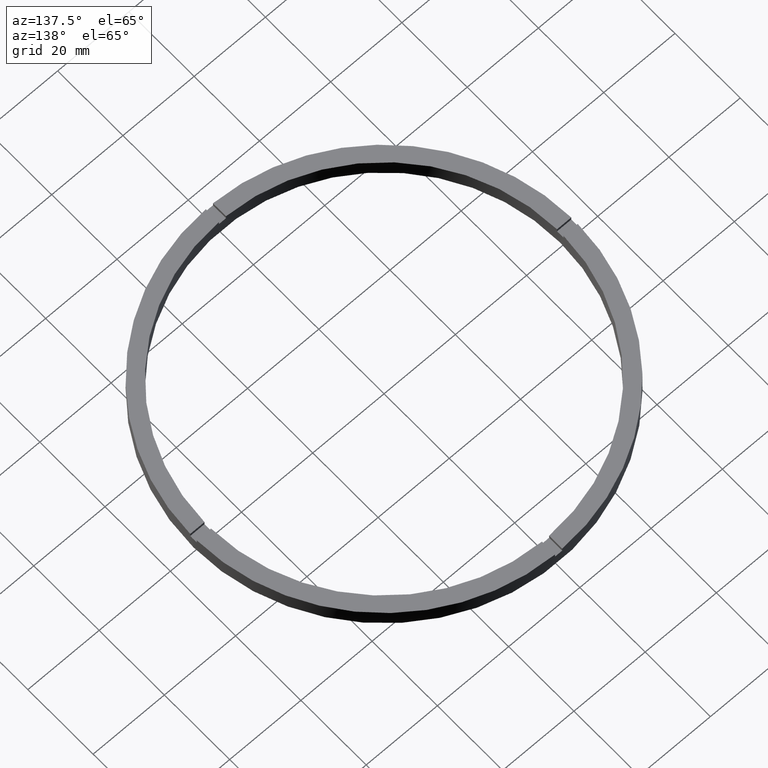
[diagram: clean part render]
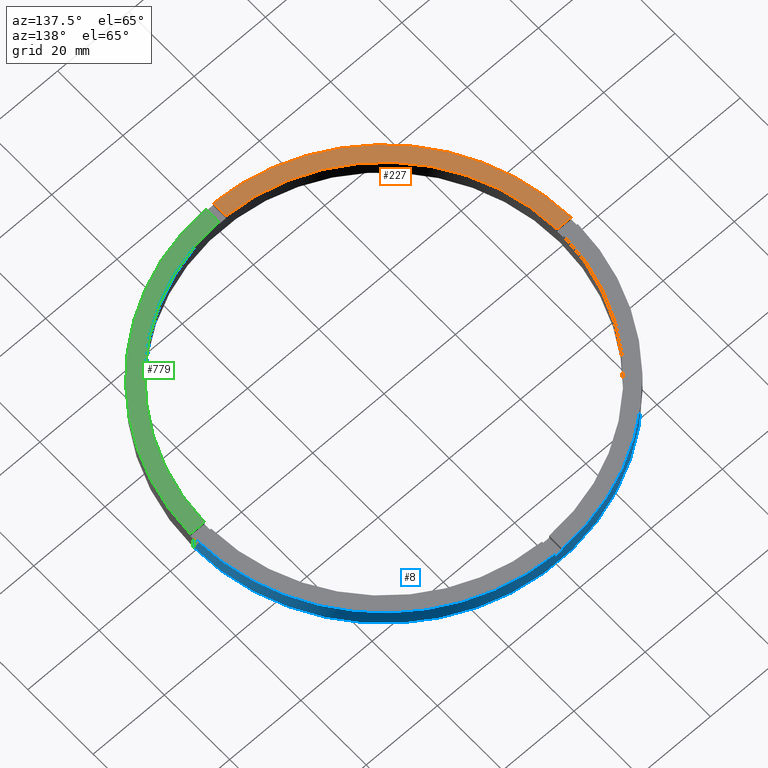
[diagram: same view with three faces highlighted in distinct colors, each labeled with its STEP entity id]
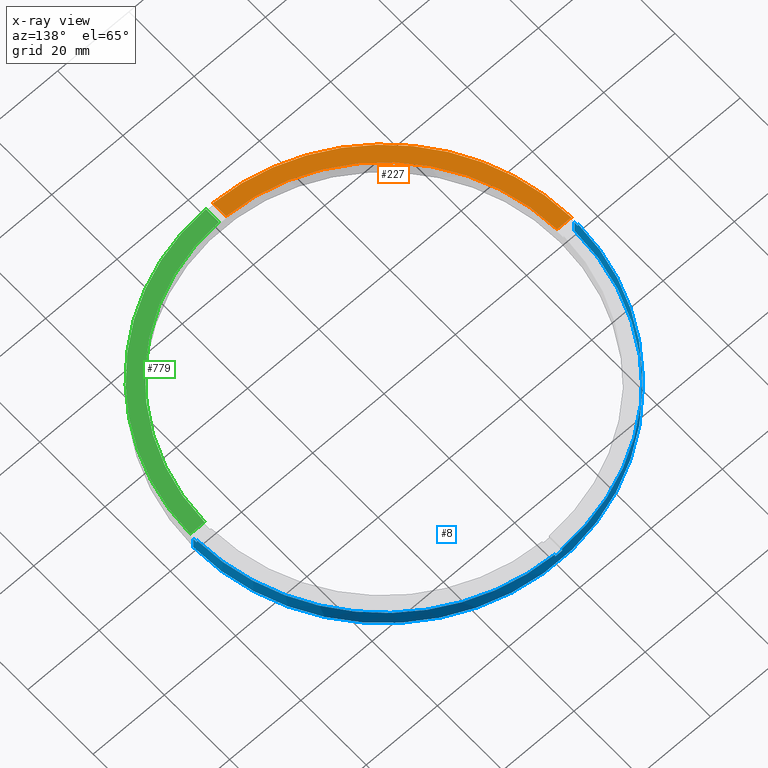
[diagram: x-ray of the same camera — body ghosted, the three highlighted faces saturated]
A machine part, auxiliary view with three faces highlighted in distinct colors.
The next image is the same camera in x-ray (body ghosted, the three faces saturated) — at least one of them is partly hidden behind the body in this view.
Their STEP definitions:

[orange] entity #227 — the highlighted planar face has unit normal (0, 0, 1).
#16 = EDGE_CURVE ( 'NONE', #222, #717, #733, .T. ) ;
#17 = CARTESIAN_POINT ( 'NONE',  ( -1.000000000000157208, -43.50000000000017764, 5.000000000000000000 ) ) ;
#22 = CARTESIAN_POINT ( 'NONE',  ( -53.49065338916696533, -1.000000000000032641, 5.000000000000000000 ) ) ;
#28 = EDGE_CURVE ( 'NONE', #717, #433, #742, .T. ) ;
#49 = LINE ( 'NONE', #17, #302 ) ;
#55 = FACE_OUTER_BOUND ( 'NONE', #725, .T. ) ;
#77 = EDGE_CURVE ( 'NONE', #433, #215, #49, .T. ) ;
#118 = AXIS2_PLACEMENT_3D ( 'NONE', #519, #265, #374 ) ;
#154 = ORIENTED_EDGE ( 'NONE', *, *, #16, .F. ) ;
#215 = VERTEX_POINT ( 'NONE', #555 ) ;
#219 = DIRECTION ( 'NONE',  ( 0.000000000000000000, 0.000000000000000000, 1.000000000000000000 ) ) ;
#222 = VERTEX_POINT ( 'NONE', #22 ) ;
#227 = ADVANCED_FACE ( 'NONE', ( #55 ), #372, .T. ) ;
#242 = EDGE_CURVE ( 'NONE', #222, #215, #310, .T. ) ;
#264 = DIRECTION ( 'NONE',  ( 1.301042606982605074E-16, -1.000000000000000000, 0.000000000000000000 ) ) ;
#265 = DIRECTION ( 'NONE',  ( 0.000000000000000000, 0.000000000000000000, 1.000000000000000000 ) ) ;
#302 = VECTOR ( 'NONE', #264, 1000.000000000000000 ) ;
#310 = CIRCLE ( 'NONE', #403, 53.50000000000000000 ) ;
#347 = DIRECTION ( 'NONE',  ( 1.000000000000000000, 0.000000000000000000, -0.000000000000000000 ) ) ;
#372 = PLANE ( 'NONE',  #395 ) ;
#374 = DIRECTION ( 'NONE',  ( 1.000000000000000000, 0.000000000000000000, 0.000000000000000000 ) ) ;
#395 = AXIS2_PLACEMENT_3D ( 'NONE', #470, #219, #347 ) ;
#403 = AXIS2_PLACEMENT_3D ( 'NONE', #512, #599, #580 ) ;
#433 = VERTEX_POINT ( 'NONE', #495 ) ;
#470 = CARTESIAN_POINT ( 'NONE',  ( 0.000000000000000000, 0.000000000000000000, 5.000000000000000000 ) ) ;
#476 = VECTOR ( 'NONE', #668, 1000.000000000000000 ) ;
#495 = CARTESIAN_POINT ( 'NONE',  ( -1.000000000000156319, -49.48989795907849043, 5.000000000000000000 ) ) ;
#512 = CARTESIAN_POINT ( 'NONE',  ( 0.000000000000000000, 0.000000000000000000, 5.000000000000000000 ) ) ;
#519 = CARTESIAN_POINT ( 'NONE',  ( 0.000000000000000000, 0.000000000000000000, 5.000000000000000000 ) ) ;
#555 = CARTESIAN_POINT ( 'NONE',  ( -1.000000000000155875, -53.49065338916696533, 5.000000000000000000 ) ) ;
#580 = DIRECTION ( 'NONE',  ( 1.000000000000000000, 0.000000000000000000, 0.000000000000000000 ) ) ;
#599 = DIRECTION ( 'NONE',  ( 0.000000000000000000, 0.000000000000000000, 1.000000000000000000 ) ) ;
#602 = CARTESIAN_POINT ( 'NONE',  ( -43.50000000000018474, -1.000000000000030642, 5.000000000000000000 ) ) ;
#668 = DIRECTION ( 'NONE',  ( 1.000000000000000000, 1.951563910473907735E-16, -0.000000000000000000 ) ) ;
#677 = ORIENTED_EDGE ( 'NONE', *, *, #242, .T. ) ;
#681 = ORIENTED_EDGE ( 'NONE', *, *, #28, .F. ) ;
#717 = VERTEX_POINT ( 'NONE', #727 ) ;
#725 = EDGE_LOOP ( 'NONE', ( #749, #681, #154, #677 ) ) ;
#727 = CARTESIAN_POINT ( 'NONE',  ( -49.48989795907849043, -1.000000000000031974, 5.000000000000000000 ) ) ;
#733 = LINE ( 'NONE', #602, #476 ) ;
#742 = CIRCLE ( 'NONE', #118, 49.50000000000000711 ) ;
#749 = ORIENTED_EDGE ( 'NONE', *, *, #77, .F. ) ;

[blue] entity #8 — the highlighted cylindrical surface (partial cylindrical patch) has radius 53.5 mm, axis along (-0, -0, -1).
#5 = CARTESIAN_POINT ( 'NONE',  ( 0.000000000000000000, 0.000000000000000000, 4.000000000000000000 ) ) ;
#8 = ADVANCED_FACE ( 'NONE', ( #739 ), #473, .T. ) ;
#10 = DIRECTION ( 'NONE',  ( 1.000000000000000000, 0.000000000000000000, 0.000000000000000000 ) ) ;
#24 = DIRECTION ( 'NONE',  ( -1.000000000000000000, 0.000000000000000000, 0.000000000000000000 ) ) ;
#27 = DIRECTION ( 'NONE',  ( 0.000000000000000000, 0.000000000000000000, 1.000000000000000000 ) ) ;
#31 = CIRCLE ( 'NONE', #758, 53.50000000000000000 ) ;
#34 = VECTOR ( 'NONE', #514, 1000.000000000000000 ) ;
#43 = CARTESIAN_POINT ( 'NONE',  ( 0.9999999999999726885, 53.49065338916696533, 5.000000000000000000 ) ) ;
#46 = LINE ( 'NONE', #116, #34 ) ;
#47 = EDGE_CURVE ( 'NONE', #689, #229, #46, .T. ) ;
#58 = EDGE_CURVE ( 'NONE', #689, #492, #31, .T. ) ;
#71 = CARTESIAN_POINT ( 'NONE',  ( 0.000000000000000000, 0.000000000000000000, 5.000000000000000000 ) ) ;
#87 = CARTESIAN_POINT ( 'NONE',  ( 53.50000000000000000, 6.551860375438339893E-15, 0.000000000000000000 ) ) ;
#94 = CARTESIAN_POINT ( 'NONE',  ( 0.9999999999999726885, 53.49065338916696533, 5.000000000000000000 ) ) ;
#99 = ORIENTED_EDGE ( 'NONE', *, *, #353, .T. ) ;
#102 = EDGE_CURVE ( 'NONE', #699, #442, #296, .T. ) ;
#111 = LINE ( 'NONE', #252, #382 ) ;
#116 = CARTESIAN_POINT ( 'NONE',  ( 53.49065338916697243, 0.9999999999998454570, 5.000000000000000000 ) ) ;
#121 = CIRCLE ( 'NONE', #511, 53.50000000000000000 ) ;
#138 = VECTOR ( 'NONE', #429, 1000.000000000000000 ) ;
#145 = LINE ( 'NONE', #43, #138 ) ;
#168 = VERTEX_POINT ( 'NONE', #365 ) ;
#178 = VERTEX_POINT ( 'NONE', #698 ) ;
#203 = ORIENTED_EDGE ( 'NONE', *, *, #710, .F. ) ;
#206 = ORIENTED_EDGE ( 'NONE', *, *, #102, .F. ) ;
#209 = CARTESIAN_POINT ( 'NONE',  ( 53.49065338916697243, 0.9999999999998454570, 4.000000000000000000 ) ) ;
#217 = VERTEX_POINT ( 'NONE', #667 ) ;
#229 = VERTEX_POINT ( 'NONE', #209 ) ;
#239 = DIRECTION ( 'NONE',  ( 1.000000000000000000, 0.000000000000000000, 0.000000000000000000 ) ) ;
#252 = CARTESIAN_POINT ( 'NONE',  ( 53.50000000000000000, 6.551860375438339893E-15, 5.000000000000000000 ) ) ;
#253 = DIRECTION ( 'NONE',  ( 0.000000000000000000, 0.000000000000000000, 1.000000000000000000 ) ) ;
#254 = DIRECTION ( 'NONE',  ( -0.000000000000000000, -0.000000000000000000, -1.000000000000000000 ) ) ;
#256 = CARTESIAN_POINT ( 'NONE',  ( 0.000000000000000000, 0.000000000000000000, 5.000000000000000000 ) ) ;
#281 = CARTESIAN_POINT ( 'NONE',  ( 0.000000000000000000, 0.000000000000000000, 4.000000000000000000 ) ) ;
#283 = EDGE_CURVE ( 'NONE', #217, #229, #325, .T. ) ;
#291 = EDGE_CURVE ( 'NONE', #442, #178, #324, .T. ) ;
#296 = CIRCLE ( 'NONE', #478, 53.50000000000000000 ) ;
#307 = CARTESIAN_POINT ( 'NONE',  ( 0.000000000000000000, 0.000000000000000000, 4.000000000000000000 ) ) ;
#311 = CARTESIAN_POINT ( 'NONE',  ( 0.000000000000000000, 0.000000000000000000, 5.000000000000000000 ) ) ;
#324 = LINE ( 'NONE', #590, #588 ) ;
#325 = CIRCLE ( 'NONE', #604, 53.50000000000000000 ) ;
#337 = CARTESIAN_POINT ( 'NONE',  ( -53.49065338916696533, 0.9999999999999674705, 5.000000000000000000 ) ) ;
#353 = EDGE_CURVE ( 'NONE', #472, #638, #390, .T. ) ;
#362 = EDGE_CURVE ( 'NONE', #699, #168, #391, .T. ) ;
#365 = CARTESIAN_POINT ( 'NONE',  ( -53.49065338916696533, 0.9999999999999674705, 5.000000000000000000 ) ) ;
#382 = VECTOR ( 'NONE', #254, 1000.000000000000000 ) ;
#384 = ORIENTED_EDGE ( 'NONE', *, *, #528, .F. ) ;
#390 = LINE ( 'NONE', #543, #642 ) ;
#391 = LINE ( 'NONE', #337, #635 ) ;
#399 = CARTESIAN_POINT ( 'NONE',  ( 0.9999999999999726885, 53.49065338916696533, 4.000000000000000000 ) ) ;
#401 = CARTESIAN_POINT ( 'NONE',  ( 53.49065338916697243, 0.9999999999998454570, 5.000000000000000000 ) ) ;
#404 = DIRECTION ( 'NONE',  ( 1.000000000000000000, 0.000000000000000000, 0.000000000000000000 ) ) ;
#410 = EDGE_CURVE ( 'NONE', #487, #178, #650, .T. ) ;
#428 = ORIENTED_EDGE ( 'NONE', *, *, #515, .T. ) ;
#429 = DIRECTION ( 'NONE',  ( 0.000000000000000000, 0.000000000000000000, 1.000000000000000000 ) ) ;
#437 = ORIENTED_EDGE ( 'NONE', *, *, #58, .F. ) ;
#442 = VERTEX_POINT ( 'NONE', #778 ) ;
#464 = ORIENTED_EDGE ( 'NONE', *, *, #410, .T. ) ;
#466 = VERTEX_POINT ( 'NONE', #399 ) ;
#472 = VERTEX_POINT ( 'NONE', #734 ) ;
#473 = CYLINDRICAL_SURFACE ( 'NONE', #489, 53.50000000000000000 ) ;
#477 = ORIENTED_EDGE ( 'NONE', *, *, #659, .T. ) ;
#478 = AXIS2_PLACEMENT_3D ( 'NONE', #307, #27, #605 ) ;
#487 = VERTEX_POINT ( 'NONE', #87 ) ;
#489 = AXIS2_PLACEMENT_3D ( 'NONE', #71, #767, #24 ) ;
#490 = EDGE_LOOP ( 'NONE', ( #730, #428, #464, #630, #206, #726, #384, #99, #203, #477, #437, #693 ) ) ;
#492 = VERTEX_POINT ( 'NONE', #94 ) ;
#496 = DIRECTION ( 'NONE',  ( 0.000000000000000000, -0.000000000000000000, 1.000000000000000000 ) ) ;
#511 = AXIS2_PLACEMENT_3D ( 'NONE', #256, #542, #10 ) ;
#514 = DIRECTION ( 'NONE',  ( -0.000000000000000000, -0.000000000000000000, -1.000000000000000000 ) ) ;
#515 = EDGE_CURVE ( 'NONE', #217, #487, #111, .T. ) ;
#528 = EDGE_CURVE ( 'NONE', #472, #168, #121, .T. ) ;
#540 = DIRECTION ( 'NONE',  ( 0.000000000000000000, 0.000000000000000000, 1.000000000000000000 ) ) ;
#542 = DIRECTION ( 'NONE',  ( 0.000000000000000000, 0.000000000000000000, 1.000000000000000000 ) ) ;
#543 = CARTESIAN_POINT ( 'NONE',  ( -1.000000000000027311, 53.49065338916696533, 5.000000000000000000 ) ) ;
#544 = CARTESIAN_POINT ( 'NONE',  ( -53.49065338916696533, 0.9999999999999674705, 4.000000000000000000 ) ) ;
#547 = AXIS2_PLACEMENT_3D ( 'NONE', #631, #568, #239 ) ;
#550 = DIRECTION ( 'NONE',  ( 0.000000000000000000, 0.000000000000000000, 1.000000000000000000 ) ) ;
#568 = DIRECTION ( 'NONE',  ( 0.000000000000000000, 0.000000000000000000, 1.000000000000000000 ) ) ;
#586 = CARTESIAN_POINT ( 'NONE',  ( -1.000000000000027311, 53.49065338916696533, 4.000000000000000000 ) ) ;
#588 = VECTOR ( 'NONE', #748, 1000.000000000000000 ) ;
#589 = DIRECTION ( 'NONE',  ( -0.000000000000000000, -0.000000000000000000, -1.000000000000000000 ) ) ;
#590 = CARTESIAN_POINT ( 'NONE',  ( -53.50000000000000000, 0.000000000000000000, 5.000000000000000000 ) ) ;
#604 = AXIS2_PLACEMENT_3D ( 'NONE', #281, #540, #620 ) ;
#605 = DIRECTION ( 'NONE',  ( 1.000000000000000000, 0.000000000000000000, 0.000000000000000000 ) ) ;
#620 = DIRECTION ( 'NONE',  ( 1.000000000000000000, 0.000000000000000000, 0.000000000000000000 ) ) ;
#630 = ORIENTED_EDGE ( 'NONE', *, *, #291, .F. ) ;
#631 = CARTESIAN_POINT ( 'NONE',  ( 0.000000000000000000, 0.000000000000000000, 0.000000000000000000 ) ) ;
#635 = VECTOR ( 'NONE', #253, 1000.000000000000000 ) ;
#638 = VERTEX_POINT ( 'NONE', #586 ) ;
#642 = VECTOR ( 'NONE', #589, 1000.000000000000000 ) ;
#646 = AXIS2_PLACEMENT_3D ( 'NONE', #5, #496, #404 ) ;
#650 = CIRCLE ( 'NONE', #547, 53.50000000000000000 ) ;
#659 = EDGE_CURVE ( 'NONE', #466, #492, #145, .T. ) ;
#667 = CARTESIAN_POINT ( 'NONE',  ( 53.50000000000000000, 6.551860375438339893E-15, 4.000000000000000000 ) ) ;
#672 = CIRCLE ( 'NONE', #646, 53.50000000000000000 ) ;
#673 = DIRECTION ( 'NONE',  ( 1.000000000000000000, 0.000000000000000000, 0.000000000000000000 ) ) ;
#689 = VERTEX_POINT ( 'NONE', #401 ) ;
#693 = ORIENTED_EDGE ( 'NONE', *, *, #47, .T. ) ;
#698 = CARTESIAN_POINT ( 'NONE',  ( -53.50000000000000000, 0.000000000000000000, 0.000000000000000000 ) ) ;
#699 = VERTEX_POINT ( 'NONE', #544 ) ;
#710 = EDGE_CURVE ( 'NONE', #466, #638, #672, .T. ) ;
#726 = ORIENTED_EDGE ( 'NONE', *, *, #362, .T. ) ;
#730 = ORIENTED_EDGE ( 'NONE', *, *, #283, .F. ) ;
#734 = CARTESIAN_POINT ( 'NONE',  ( -1.000000000000027311, 53.49065338916696533, 5.000000000000000000 ) ) ;
#739 = FACE_OUTER_BOUND ( 'NONE', #490, .T. ) ;
#748 = DIRECTION ( 'NONE',  ( -0.000000000000000000, -0.000000000000000000, -1.000000000000000000 ) ) ;
#758 = AXIS2_PLACEMENT_3D ( 'NONE', #311, #550, #673 ) ;
#767 = DIRECTION ( 'NONE',  ( -0.000000000000000000, -0.000000000000000000, -1.000000000000000000 ) ) ;
#778 = CARTESIAN_POINT ( 'NONE',  ( -53.50000000000000000, 0.000000000000000000, 4.000000000000000000 ) ) ;

[green] entity #779 — the highlighted planar face has unit normal (0, 0, 1).
#19 = DIRECTION ( 'NONE',  ( 1.000000000000000000, 0.000000000000000000, -0.000000000000000000 ) ) ;
#25 = AXIS2_PLACEMENT_3D ( 'NONE', #409, #330, #277 ) ;
#48 = DIRECTION ( 'NONE',  ( 0.000000000000000000, 0.000000000000000000, 1.000000000000000000 ) ) ;
#50 = AXIS2_PLACEMENT_3D ( 'NONE', #746, #48, #282 ) ;
#75 = LINE ( 'NONE', #86, #76 ) ;
#76 = VECTOR ( 'NONE', #272, 1000.000000000000000 ) ;
#86 = CARTESIAN_POINT ( 'NONE',  ( 43.49999999999999289, -1.000000000000155209, 5.000000000000000000 ) ) ;
#106 = ORIENTED_EDGE ( 'NONE', *, *, #525, .F. ) ;
#109 = EDGE_LOOP ( 'NONE', ( #187, #106, #751, #150 ) ) ;
#134 = CARTESIAN_POINT ( 'NONE',  ( 49.48989795907849043, -1.000000000000154765, 5.000000000000000000 ) ) ;
#150 = ORIENTED_EDGE ( 'NONE', *, *, #364, .T. ) ;
#171 = DIRECTION ( 'NONE',  ( -1.301042606982605074E-16, 1.000000000000000000, -0.000000000000000000 ) ) ;
#187 = ORIENTED_EDGE ( 'NONE', *, *, #317, .F. ) ;
#234 = CARTESIAN_POINT ( 'NONE',  ( 0.9999999999998436806, -49.48989795907849043, 5.000000000000000000 ) ) ;
#250 = EDGE_CURVE ( 'NONE', #438, #735, #592, .T. ) ;
#272 = DIRECTION ( 'NONE',  ( 1.000000000000000000, 6.505213034913025371E-17, 0.000000000000000000 ) ) ;
#277 = DIRECTION ( 'NONE',  ( 1.000000000000000000, 0.000000000000000000, 0.000000000000000000 ) ) ;
#282 = DIRECTION ( 'NONE',  ( 1.000000000000000000, 0.000000000000000000, 0.000000000000000000 ) ) ;
#317 = EDGE_CURVE ( 'NONE', #474, #370, #75, .T. ) ;
#330 = DIRECTION ( 'NONE',  ( 0.000000000000000000, 0.000000000000000000, 1.000000000000000000 ) ) ;
#359 = PLANE ( 'NONE',  #506 ) ;
#364 = EDGE_CURVE ( 'NONE', #438, #370, #389, .T. ) ;
#370 = VERTEX_POINT ( 'NONE', #770 ) ;
#386 = CIRCLE ( 'NONE', #25, 49.50000000000000711 ) ;
#389 = CIRCLE ( 'NONE', #50, 53.50000000000000000 ) ;
#409 = CARTESIAN_POINT ( 'NONE',  ( 0.000000000000000000, 0.000000000000000000, 5.000000000000000000 ) ) ;
#414 = FACE_OUTER_BOUND ( 'NONE', #109, .T. ) ;
#438 = VERTEX_POINT ( 'NONE', #722 ) ;
#449 = CARTESIAN_POINT ( 'NONE',  ( 0.000000000000000000, 0.000000000000000000, 5.000000000000000000 ) ) ;
#474 = VERTEX_POINT ( 'NONE', #134 ) ;
#506 = AXIS2_PLACEMENT_3D ( 'NONE', #449, #763, #19 ) ;
#507 = CARTESIAN_POINT ( 'NONE',  ( 0.9999999999998427924, -43.50000000000017764, 5.000000000000000000 ) ) ;
#525 = EDGE_CURVE ( 'NONE', #735, #474, #386, .T. ) ;
#585 = VECTOR ( 'NONE', #171, 1000.000000000000000 ) ;
#592 = LINE ( 'NONE', #507, #585 ) ;
#722 = CARTESIAN_POINT ( 'NONE',  ( 0.9999999999998441247, -53.49065338916697243, 5.000000000000000000 ) ) ;
#735 = VERTEX_POINT ( 'NONE', #234 ) ;
#746 = CARTESIAN_POINT ( 'NONE',  ( 0.000000000000000000, 0.000000000000000000, 5.000000000000000000 ) ) ;
#751 = ORIENTED_EDGE ( 'NONE', *, *, #250, .F. ) ;
#763 = DIRECTION ( 'NONE',  ( 0.000000000000000000, 0.000000000000000000, 1.000000000000000000 ) ) ;
#770 = CARTESIAN_POINT ( 'NONE',  ( 53.49065338916696533, -1.000000000000154543, 5.000000000000000000 ) ) ;
#779 = ADVANCED_FACE ( 'NONE', ( #414 ), #359, .T. ) ;